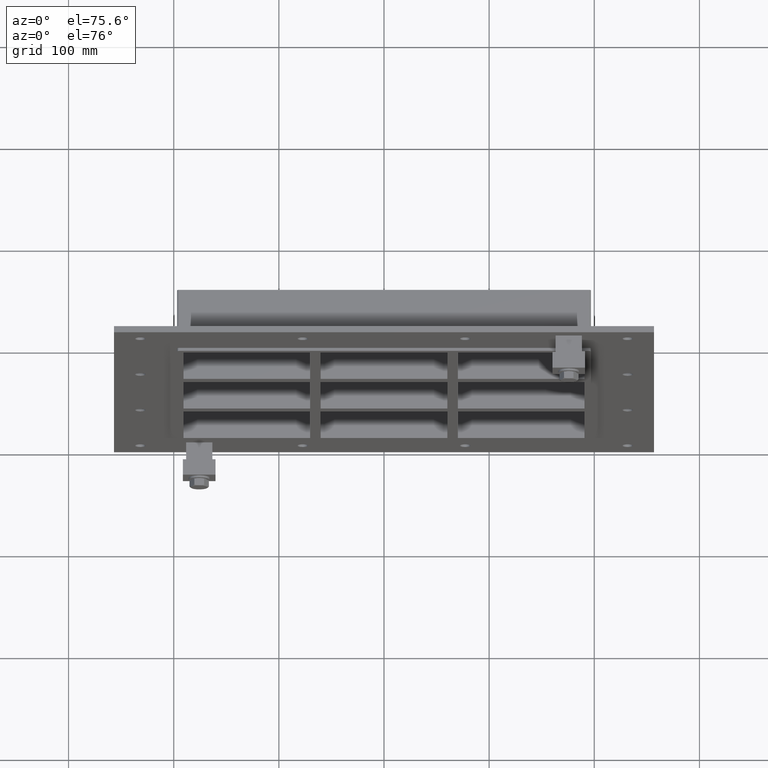
[diagram: clean part render]
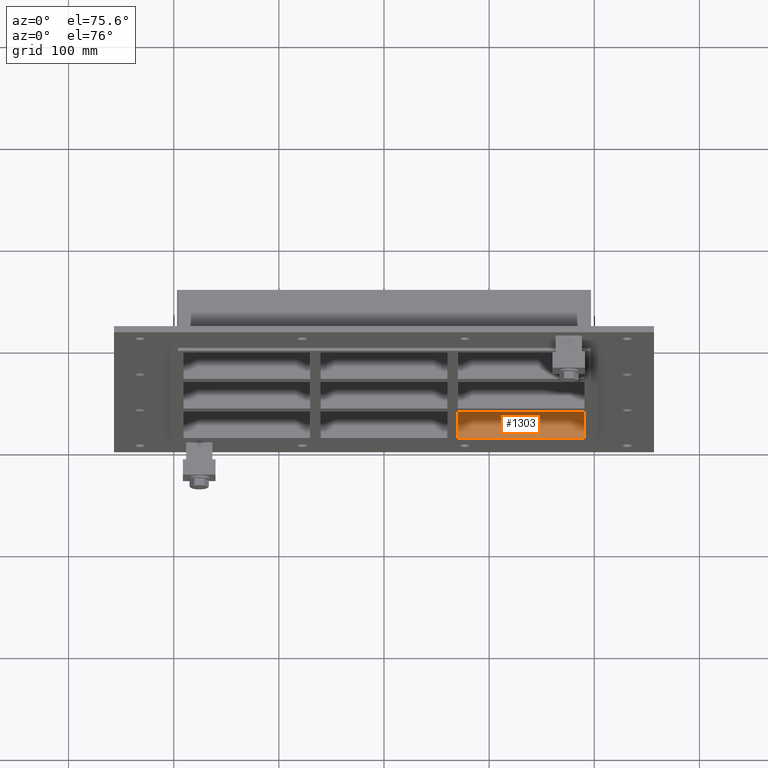
[diagram: same view with one face highlighted and labeled with its STEP entity id]
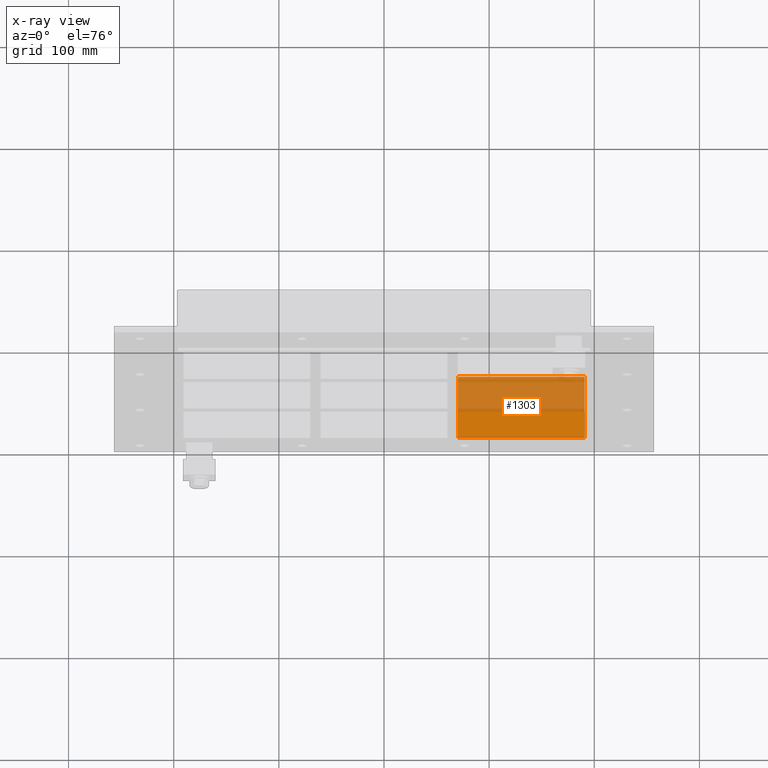
[diagram: x-ray of the same camera — body ghosted, the highlighted face saturated]
A machine part, auxiliary view. The second image highlights one B-rep face of the part: STEP entity #1303.
The next image is the same camera in x-ray: the body ghosted, the highlighted face saturated — about 57% of this face is hidden behind the body in this view.
In plain terms, the highlighted planar face has unit normal (0, 0, -1).
Its self-contained STEP definition (entity closure, byte-faithful):
#1111=CARTESIAN_POINT('',(70.250000000003638,57.0,-163.49999999998175));
#1112=VERTEX_POINT('',#1111);
#1113=CARTESIAN_POINT('',(190.75000000000003,57.0,-163.50000000000009));
#1114=VERTEX_POINT('',#1113);
#1115=CARTESIAN_POINT('',(70.250000000003638,57.0,-163.50000000000009));
#1116=DIRECTION('',(1.0,0.0,0.0));
#1117=VECTOR('',#1116,120.49999999999639);
#1118=LINE('',#1115,#1117);
#1119=EDGE_CURVE('',#1112,#1114,#1118,.T.);
#1238=CARTESIAN_POINT('',(70.250000000003638,-3.0,-163.49999999998178));
#1239=VERTEX_POINT('',#1238);
#1246=CARTESIAN_POINT('',(70.250000000003638,57.000000000000007,-163.50000000000009));
#1247=DIRECTION('',(0.0,-1.0,0.0));
#1248=VECTOR('',#1247,60.000000000000007);
#1249=LINE('',#1246,#1248);
#1250=EDGE_CURVE('',#1112,#1239,#1249,.T.);
#1280=CARTESIAN_POINT('',(190.75000000000003,0.0,-163.50000000000009));
#1281=DIRECTION('',(0.0,0.0,-1.0));
#1282=DIRECTION('',(-1.0,0.0,0.0));
#1283=AXIS2_PLACEMENT_3D('',#1280,#1281,#1282);
#1284=PLANE('',#1283);
#1285=ORIENTED_EDGE('',*,*,#1250,.T.);
#1286=CARTESIAN_POINT('',(190.75000000000003,-3.0,-163.50000000000009));
#1287=VERTEX_POINT('',#1286);
#1288=CARTESIAN_POINT('',(190.75000000000003,-3.0,-163.50000000000009));
#1289=DIRECTION('',(-1.0,0.0,0.0));
#1290=VECTOR('',#1289,120.49999999999639);
#1291=LINE('',#1288,#1290);
#1292=EDGE_CURVE('',#1287,#1239,#1291,.T.);
#1293=ORIENTED_EDGE('',*,*,#1292,.F.);
#1294=CARTESIAN_POINT('',(190.75000000000003,56.999999999999993,-163.50000000000009));
#1295=DIRECTION('',(0.0,-1.0,0.0));
#1296=VECTOR('',#1295,59.999999999999993);
#1297=LINE('',#1294,#1296);
#1298=EDGE_CURVE('',#1114,#1287,#1297,.T.);
#1299=ORIENTED_EDGE('',*,*,#1298,.F.);
#1300=ORIENTED_EDGE('',*,*,#1119,.F.);
#1301=EDGE_LOOP('',(#1285,#1293,#1299,#1300));
#1302=FACE_OUTER_BOUND('',#1301,.T.);
#1303=ADVANCED_FACE('',(#1302),#1284,.F.);